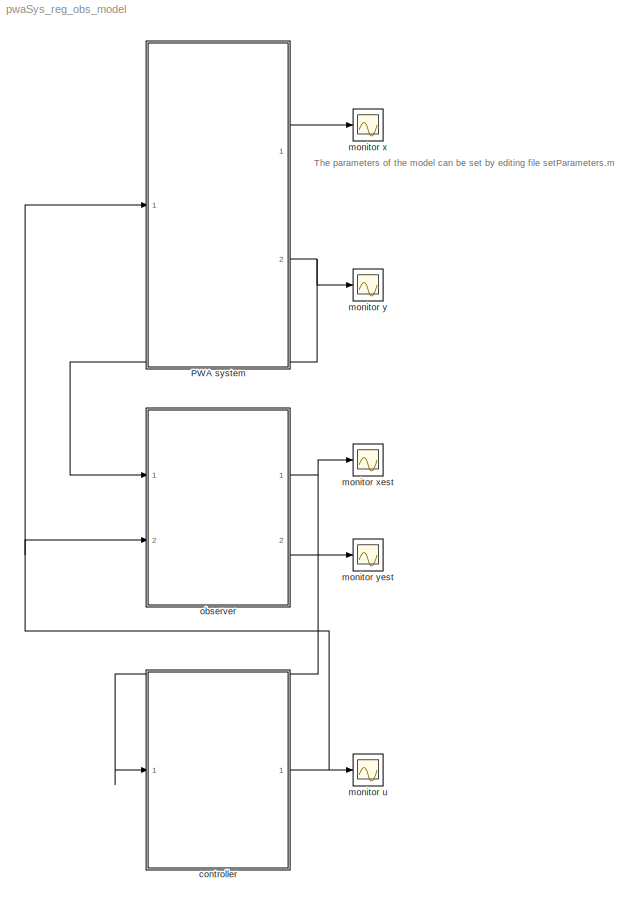
MODEL pwaSys_reg_obs_model
KIND model
CONFIG InitFcn = load simulink.mat\nsetParameters
CONFIG StartFcn = load simulink.mat\nsetParameters\nclear res_X res_U res_Y res_P res_D \nclear res_Xest res_Dest res_Yest
CONFIG StopFcn = plotScope
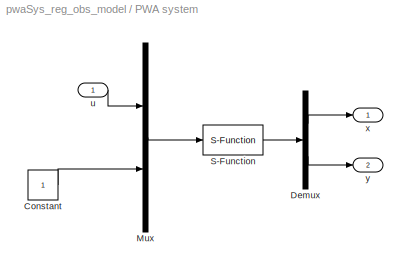
BLOCK [SubSystem] PWA system
  Ports = [1, 2]
  RequestExecContextInheritance = off
  SID = 5
  Variant = off
BLOCK [Constant] PWA system/Constant
  SID = 26
BLOCK [Demux] PWA system/Demux
  DisplayOption = bar
  Outputs = [sim_nx sim_ny]
  Ports = [1, 2]
  SID = 19
BLOCK [Mux] PWA system/Mux
  DisplayOption = bar
  Inputs = 2
  Ports = [2, 1]
  SID = 20
BLOCK [S-Function] PWA system/S-Function
  EnableBusSupport = off
  FunctionName = s_pwaSys_d
  Parameters = A,B,C,D,H,K,sim_x0,Ts
  Ports = [1, 1]
  SFunctionDeploymentMode = off
  SID = 87
BLOCK [Inport] PWA system/u
  IconDisplay = Port number
  SID = 6
BLOCK [Outport] PWA system/x
  IconDisplay = Port number
  SID = 7
BLOCK [Outport] PWA system/y
  IconDisplay = Port number
  Port = 2
  SID = 10
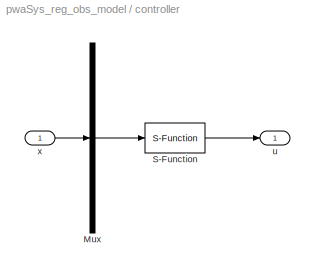
BLOCK [SubSystem] controller
  Ports = [1, 1]
  RequestExecContextInheritance = off
  SID = 48
  Variant = off
BLOCK [Mux] controller/Mux
  DisplayOption = bar
  Inputs = 1
  Ports = [1, 1]
  SID = 52
BLOCK [S-Function] controller/S-Function
  EnableBusSupport = off
  FunctionName = s_MPCctrl
  Parameters = sim_ctrl
  Ports = [1, 1]
  SFunctionDeploymentMode = off
  SID = 53
BLOCK [Outport] controller/u
  IconDisplay = Port number
  SID = 54
BLOCK [Inport] controller/x
  IconDisplay = Port number
  SID = 49
BLOCK [Scope] monitor u
  Ports = [1]
  SID = 23
  ScopeSpecificationString = C++SS(StrPVP('Location','[188, 365, 512, 604]'),StrPVP('Open','off'),MxPVP('AxesTitles',24,'struct(''axes1'',''%<SignalLabel>'')'),MxPVP('ScopeGraphics',28,'struct(''FigureColor'',''[0.5 0.5 0.5]'',''AxesColor'',''[0 0 0]'',''AxesTickColor'',''[1 1 1]'',''LineColors'',''[1 1 0;1 0 1;0 1 1;1 0 0;0 1 0;0 0 1]'',''LineStyles'',''-|-|-|-|-|-'',''LineWidths'',''[0.5 0.5 0.5 0.5 0.5 0.5]'',''MarkerStyle...<+263ch>
BLOCK [Scope] monitor x
  Ports = [1]
  SID = 16
  ScopeSpecificationString = C++SS(StrPVP('Location','[188, 364, 512, 603]'),StrPVP('Open','off'),MxPVP('AxesTitles',24,'struct(''axes1'',''%<SignalLabel>'')'),MxPVP('ScopeGraphics',28,'struct(''FigureColor'',''[0.5 0.5 0.5]'',''AxesColor'',''[0 0 0]'',''AxesTickColor'',''[1 1 1]'',''LineColors'',''[1 1 0;1 0 1;0 1 1;1 0 0;0 1 0;0 0 1]'',''LineStyles'',''-|-|-|-|-|-'',''LineWidths'',''[0.5 0.5 0.5 0.5 0.5 0.5]'',''MarkerStyle...<+263ch>
BLOCK [Scope] monitor xest
  Ports = [1]
  SID = 44
  ScopeSpecificationString = C++SS(StrPVP('Location','[188, 364, 512, 603]'),StrPVP('Open','off'),MxPVP('AxesTitles',24,'struct(''axes1'',''%<SignalLabel>'')'),MxPVP('ScopeGraphics',28,'struct(''FigureColor'',''[0.5 0.5 0.5]'',''AxesColor'',''[0 0 0]'',''AxesTickColor'',''[1 1 1]'',''LineColors'',''[1 1 0;1 0 1;0 1 1;1 0 0;0 1 0;0 0 1]'',''LineStyles'',''-|-|-|-|-|-'',''LineWidths'',''[0.5 0.5 0.5 0.5 0.5 0.5]'',''MarkerStyle...<+266ch>
BLOCK [Scope] monitor y
  Ports = [1]
  SID = 17
  ScopeSpecificationString = C++SS(StrPVP('Location','[188, 365, 502, 602]'),StrPVP('Open','off'),MxPVP('AxesTitles',24,'struct(''axes1'',''%<SignalLabel>'')'),MxPVP('ScopeGraphics',28,'struct(''FigureColor'',''[0.5 0.5 0.5]'',''AxesColor'',''[0 0 0]'',''AxesTickColor'',''[1 1 1]'',''LineColors'',''[1 1 0;1 0 1;0 1 1;1 0 0;0 1 0;0 0 1]'',''LineStyles'',''-|-|-|-|-|-'',''LineWidths'',''[0.5 0.5 0.5 0.5 0.5 0.5]'',''MarkerStyle...<+263ch>
BLOCK [Scope] monitor yest
  Ports = [1]
  SID = 46
  ScopeSpecificationString = C++SS(StrPVP('Location','[188, 364, 512, 603]'),StrPVP('Open','off'),MxPVP('AxesTitles',24,'struct(''axes1'',''%<SignalLabel>'')'),MxPVP('ScopeGraphics',28,'struct(''FigureColor'',''[0.5 0.5 0.5]'',''AxesColor'',''[0 0 0]'',''AxesTickColor'',''[1 1 1]'',''LineColors'',''[1 1 0;1 0 1;0 1 1;1 0 0;0 1 0;0 0 1]'',''LineStyles'',''-|-|-|-|-|-'',''LineWidths'',''[0.5 0.5 0.5 0.5 0.5 0.5]'',''MarkerStyle...<+266ch>
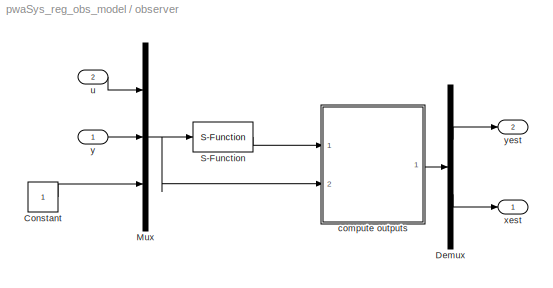
BLOCK [SubSystem] observer
  Ports = [2, 2]
  RequestExecContextInheritance = off
  SID = 55
  Variant = off
BLOCK [Constant] observer/Constant
  SID = 59
BLOCK [Demux] observer/Demux
  DisplayOption = bar
  Outputs = [sim_ny sim_nx]
  Ports = [1, 2]
  SID = 60
BLOCK [Mux] observer/Mux
  DisplayOption = bar
  Inputs = 3
  Ports = [3, 1]
  SID = 62
BLOCK [S-Function] observer/S-Function
  EnableBusSupport = off
  FunctionName = s_pwaSys_d
  Parameters = A,B,C,D,H,K,sim_x0,Ts
  Ports = [1, 1]
  SFunctionDeploymentMode = off
  SID = 79
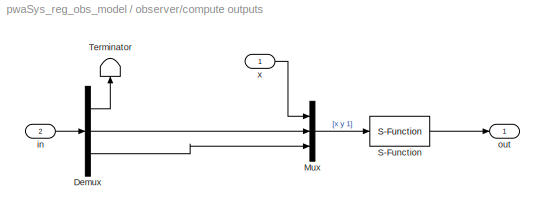
BLOCK [SubSystem] observer/compute outputs
  Ports = [2, 1]
  RequestExecContextInheritance = off
  SID = 63
  Variant = off
BLOCK [Demux] observer/compute outputs/Demux
  DisplayOption = bar
  Outputs = [sim_nu sim_ny 1]
  Ports = [1, 3]
  SID = 82
BLOCK [Mux] observer/compute outputs/Mux
  DisplayOption = bar
  Inputs = 3
  Ports = [3, 1]
  SID = 83
BLOCK [S-Function] observer/compute outputs/S-Function
  EnableBusSupport = off
  FunctionName = pwaMult
  Parameters = sim_nx,sim_np,sim_nd,sim_nu,sim_H,sim_K,sim_Cobs,sim_Dobs
  Ports = [1, 1]
  SFunctionDeploymentMode = off
  SID = 84
BLOCK [Terminator] observer/compute outputs/Terminator
  SID = 85
BLOCK [Inport] observer/compute outputs/in
  IconDisplay = Port number
  Port = 2
  SID = 81
BLOCK [Outport] observer/compute outputs/out
  IconDisplay = Port number
  SID = 86
BLOCK [Inport] observer/compute outputs/x
  IconDisplay = Port number
  SID = 80
BLOCK [Inport] observer/u
  IconDisplay = Port number
  Port = 2
  SID = 57
BLOCK [Outport] observer/xest
  IconDisplay = Port number
  SID = 75
BLOCK [Inport] observer/y
  IconDisplay = Port number
  SID = 56
BLOCK [Outport] observer/yest
  IconDisplay = Port number
  Port = 2
  SID = 77
ANNOTATION (root): \n \n
ANNOTATION (root): \n \n The parameters of the model can be set by editing file setParameters.m \n \n The simulation results are also saved in MATLAB workspace as variables \n res_X, res_Y, res_U, res_Xest, and res_Yest and automatically plotted
LINE PWA system/Constant:1 -> PWA system/Mux:2
LINE PWA system/Demux:1 -> PWA system/x:1
LINE PWA system/Demux:2 -> PWA system/y:1
LINE PWA system/Mux:1 -> PWA system/S-Function:1
LINE PWA system/S-Function:1 -> PWA system/Demux:1
LINE PWA system/u:1 -> PWA system/Mux:1
LINE PWA system:1 -> monitor x:1
NET PWA system:2 -> monitor y:1, observer:1
LINE controller/Mux:1 -> controller/S-Function:1
LINE controller/S-Function:1 -> controller/u:1
LINE controller/x:1 -> controller/Mux:1
NET controller:1 -> PWA system:1, monitor u:1, observer:2
LINE observer/Constant:1 -> observer/Mux:3
LINE observer/Demux:1 -> observer/yest:1
LINE observer/Demux:2 -> observer/xest:1
NET observer/Mux:1 -> observer/S-Function:1, observer/compute outputs:2
LINE observer/S-Function:1 -> observer/compute outputs:1
LINE observer/compute outputs/Demux:1 -> observer/compute outputs/Terminator:1
LINE observer/compute outputs/Demux:2 -> observer/compute outputs/Mux:2
LINE observer/compute outputs/Demux:3 -> observer/compute outputs/Mux:3
LINE observer/compute outputs/Mux:1 -> observer/compute outputs/S-Function:1
LINE observer/compute outputs/S-Function:1 -> observer/compute outputs/out:1
LINE observer/compute outputs/in:1 -> observer/compute outputs/Demux:1
LINE observer/compute outputs/x:1 -> observer/compute outputs/Mux:1
LINE observer/compute outputs:1 -> observer/Demux:1
LINE observer/u:1 -> observer/Mux:1
LINE observer/y:1 -> observer/Mux:2
NET observer:1 -> controller:1, monitor xest:1
LINE observer:2 -> monitor yest:1
note: NET lines group one-source signal fan-out (src -> all destinations, sorted); 1:1 wires keep LINE
